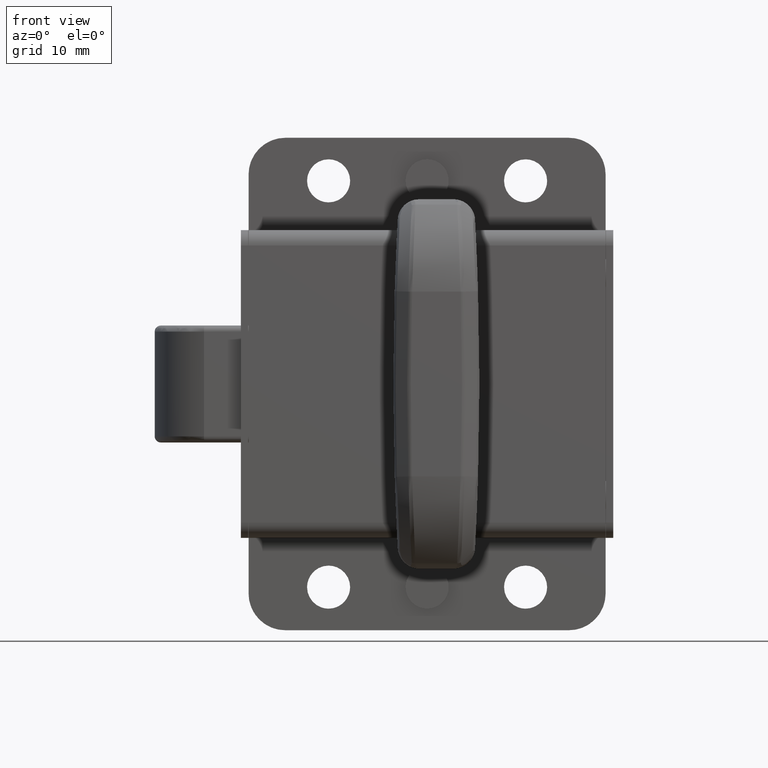
[diagram: clean part render]
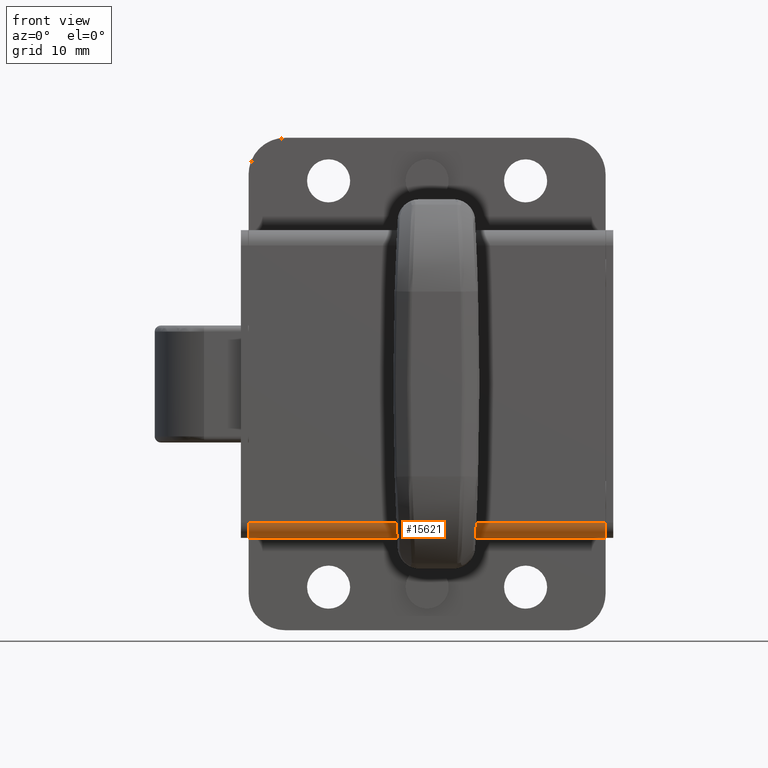
[diagram: same view with one face highlighted and labeled with its STEP entity id]
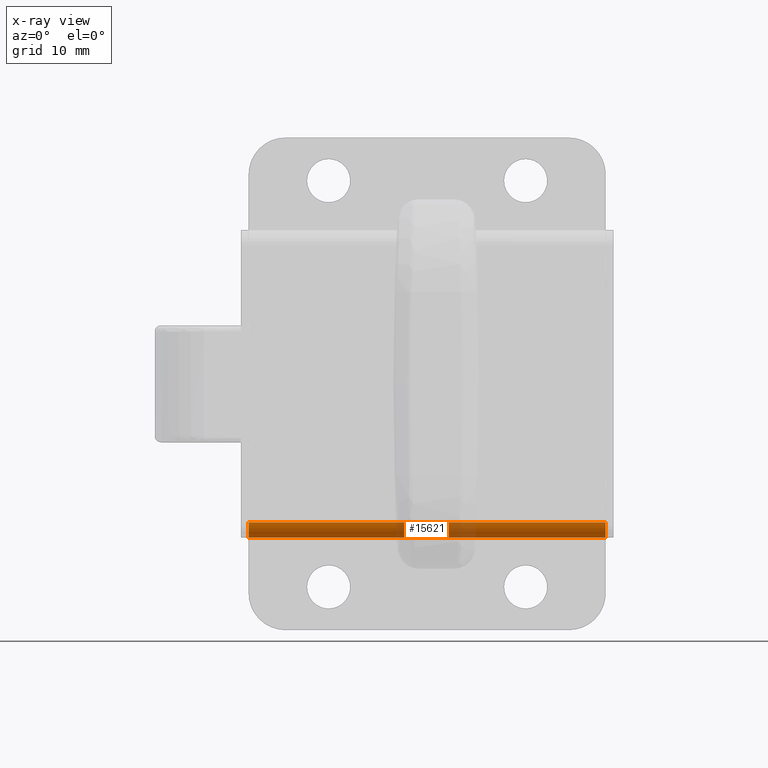
[diagram: x-ray of the same camera — body ghosted, the highlighted face saturated]
A machine part, front view. The second image highlights one B-rep face of the part: STEP entity #15621.
The next image is the same camera in x-ray: the body ghosted, the highlighted face saturated — about 22% of this face is hidden behind the body in this view.
In plain terms, the highlighted face is a freeform B-spline surface patch.
Its self-contained STEP definition (entity closure, byte-faithful):
#15102=CARTESIAN_POINT('',(-30.499998785926000,-12.500000000000000,-25.0));
#15103=VERTEX_POINT('',#15102);
#15109=CARTESIAN_POINT('',(-30.499998785926000,-15.0,-22.500000000000000));
#15110=VERTEX_POINT('',#15109);
#15111=CARTESIAN_POINT('',(-30.499998785926000,-12.500000000000000,-25.0));
#15112=CARTESIAN_POINT('',(-30.499998785926010,-12.724990759200670,-25.000077848715609));
#15113=CARTESIAN_POINT('',(-30.499998785926099,-13.113554785004110,-24.947169378197110));
#15114=CARTESIAN_POINT('',(-30.499998785925872,-13.631280890400079,-24.747458181168138));
#15115=CARTESIAN_POINT('',(-30.499998785926159,-14.047996350883320,-24.483573356437130));
#15116=CARTESIAN_POINT('',(-30.499998785925960,-14.405230330981301,-24.143459824570169));
#15117=CARTESIAN_POINT('',(-30.499998785925971,-14.689234986154069,-23.740193319215422));
#15118=CARTESIAN_POINT('',(-30.499998785926010,-14.930805003424370,-23.195321444806890));
#15119=CARTESIAN_POINT('',(-30.499998785926039,-15.000144637742039,-22.765911017237581));
#15120=CARTESIAN_POINT('',(-30.499998785926000,-15.0,-22.500000000000000));
#15121=B_SPLINE_CURVE_WITH_KNOTS('',3,(#15111,#15112,#15113,#15114,#15115,#15116,#15117,#15118,#15119,#15120),.UNSPECIFIED.,.F.,.U.,(4,1,1,1,1,1,1,4),(0.000000048785964,0.674963356796230,1.165858561914778,1.656751593041021,2.147620588130535,2.638510575359981,3.129400375707712,3.927089360836407),.UNSPECIFIED.);
#15122=EDGE_CURVE('',#15103,#15110,#15121,.T.);
#15367=CARTESIAN_POINT('',(27.500001214073801,-15.0,-22.500000000000000));
#15368=VERTEX_POINT('',#15367);
#15374=CARTESIAN_POINT('',(27.500001214073801,-12.500000000000000,-25.0));
#15375=VERTEX_POINT('',#15374);
#15376=CARTESIAN_POINT('',(27.500001214073801,-12.500000000000000,-25.0));
#15377=CARTESIAN_POINT('',(27.500001214073830,-12.724990759200670,-25.000077848715609));
#15378=CARTESIAN_POINT('',(27.500001214073901,-13.113554785004100,-24.947169378197110));
#15379=CARTESIAN_POINT('',(27.500001214073670,-13.631280890400090,-24.747458181168110));
#15380=CARTESIAN_POINT('',(27.500001214073968,-14.047996350883320,-24.483573356437159));
#15381=CARTESIAN_POINT('',(27.500001214073759,-14.405230330981301,-24.143459824570161));
#15382=CARTESIAN_POINT('',(27.500001214073791,-14.689234986154080,-23.740193319215429));
#15383=CARTESIAN_POINT('',(27.500001214073791,-14.930805003424370,-23.195321444806869));
#15384=CARTESIAN_POINT('',(27.500001214073841,-15.000144637742039,-22.765911017237588));
#15385=CARTESIAN_POINT('',(27.500001214073801,-15.0,-22.500000000000000));
#15386=B_SPLINE_CURVE_WITH_KNOTS('',3,(#15376,#15377,#15378,#15379,#15380,#15381,#15382,#15383,#15384,#15385),.UNSPECIFIED.,.F.,.U.,(4,1,1,1,1,1,1,4),(0.000000048785964,0.674963356796230,1.165858561914778,1.656751593041021,2.147620588130535,2.638510575359981,3.129400375707712,3.927089360836407),.UNSPECIFIED.);
#15387=EDGE_CURVE('',#15375,#15368,#15386,.T.);
#15589=CARTESIAN_POINT('',(27.500001214073801,-12.500000000000000,-25.0));
#15590=CARTESIAN_POINT('',(-30.499998785926000,-12.500000000000000,-25.0));
#15591=QUASI_UNIFORM_CURVE('',1,(#15589,#15590),.UNSPECIFIED.,.F.,.U.);
#15592=EDGE_CURVE('',#15375,#15103,#15591,.T.);
#15597=CARTESIAN_POINT('',(28.950001214073801,-14.999904807660430,-22.478183661254072));
#15598=CARTESIAN_POINT('',(-31.986248785925991,-14.999904807660430,-22.478183661254072));
#15599=CARTESIAN_POINT('',(28.950001214073797,-15.023299966698866,-25.159003355029395));
#15600=CARTESIAN_POINT('',(-31.986248785925991,-15.023299966698866,-25.159003355029395));
#15601=CARTESIAN_POINT('',(28.950001214073801,-12.347378651162860,-24.995336996054672));
#15602=CARTESIAN_POINT('',(-31.986248785925991,-12.347378651162860,-24.995336996054672));
#15610=(BOUNDED_SURFACE()B_SPLINE_SURFACE(1,2,((#15597,#15599,#15601),(#15598,#15600,#15602)),.UNSPECIFIED.,.F.,.F.,.U.)B_SPLINE_SURFACE_WITH_KNOTS((2,2),(3,3),(0.0,60.936249999999802),(0.0,4.348123749609338),.UNSPECIFIED.)GEOMETRIC_REPRESENTATION_ITEM()RATIONAL_B_SPLINE_SURFACE(((1.0,0.681998360062499,1.0),(1.0,0.681998360062499,1.0)))REPRESENTATION_ITEM('')SURFACE());
#15611=ORIENTED_EDGE('',*,*,#15122,.F.);
#15612=ORIENTED_EDGE('',*,*,#15592,.F.);
#15613=ORIENTED_EDGE('',*,*,#15387,.T.);
#15614=CARTESIAN_POINT('',(27.500001214073801,-15.0,-22.500000000000000));
#15615=CARTESIAN_POINT('',(-30.499998785926000,-15.0,-22.500000000000000));
#15616=QUASI_UNIFORM_CURVE('',1,(#15614,#15615),.UNSPECIFIED.,.F.,.U.);
#15617=EDGE_CURVE('',#15368,#15110,#15616,.T.);
#15618=ORIENTED_EDGE('',*,*,#15617,.T.);
#15619=EDGE_LOOP('',(#15611,#15612,#15613,#15618));
#15620=FACE_OUTER_BOUND('',#15619,.T.);
#15621=ADVANCED_FACE('',(#15620),#15610,.T.);